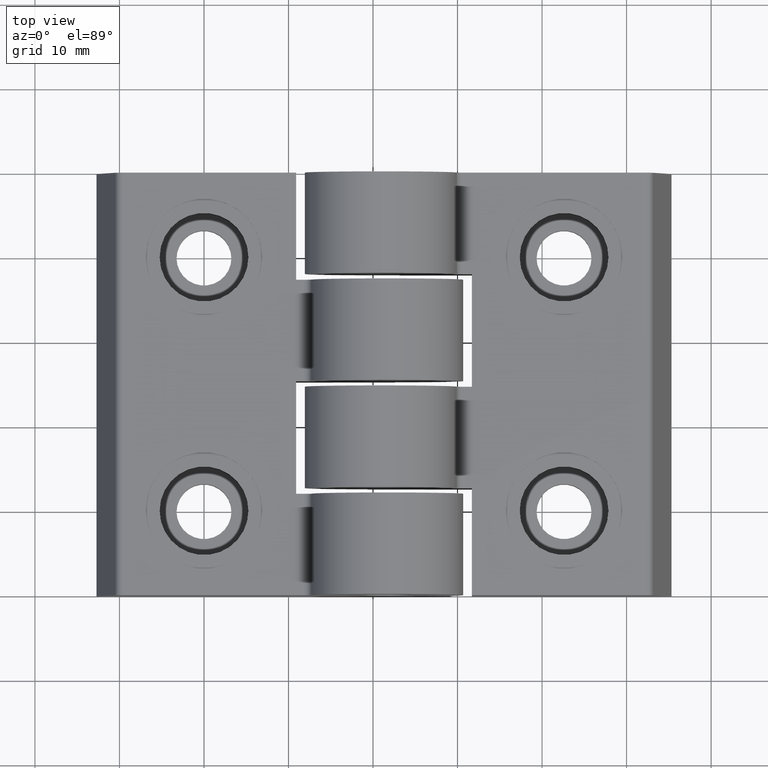
[diagram: clean part render]
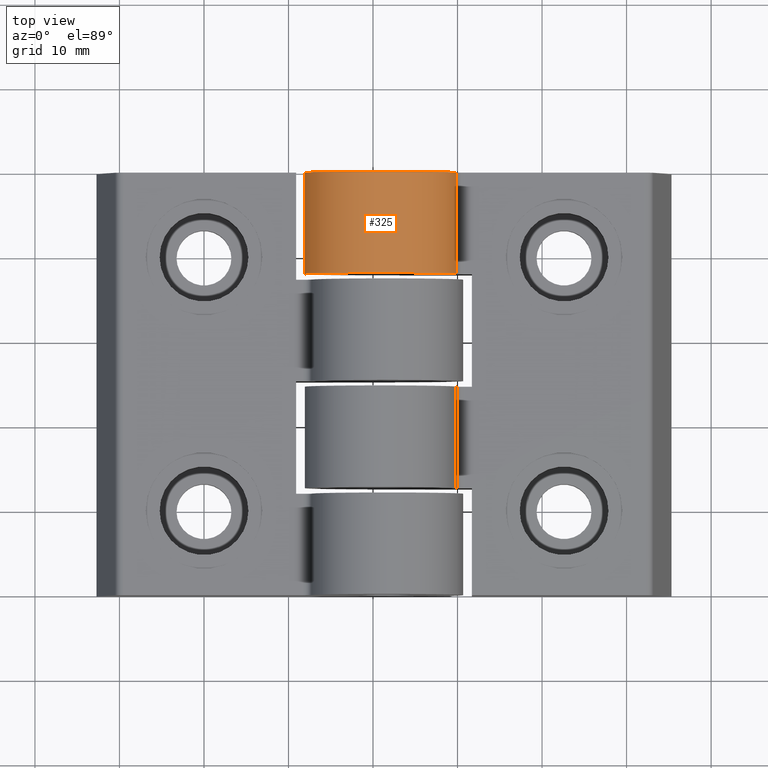
[diagram: same view with one face highlighted and labeled with its STEP entity id]
A machine part, top view. The second image highlights one B-rep face of the part: STEP entity #325.
In plain terms, the highlighted cylindrical surface (partial cylindrical patch) has radius 9 mm, axis along (0, -1, 0).
Its self-contained STEP definition (entity closure, byte-faithful):
#232=CARTESIAN_POINT('',(29.871981079764339,39.999994929838977,10.899997909476069));
#233=VERTEX_POINT('',#232);
#241=CARTESIAN_POINT('',(29.871981079764339,27.999997593887201,10.899997909476069));
#242=VERTEX_POINT('',#241);
#243=CARTESIAN_POINT('',(29.871981079764339,39.999994929838977,10.899997909476069));
#244=DIRECTION('',(0.0,-1.0,0.0));
#245=VECTOR('',#244,11.999997335951775);
#246=LINE('',#243,#245);
#247=EDGE_CURVE('',#233,#242,#246,.T.);
#293=CARTESIAN_POINT('',(20.917086790741052,39.999994929838977,10.000000666356071));
#294=DIRECTION('',(7.703720E-034,-1.0,6.123234E-017));
#295=DIRECTION('',(0.994987475757264,6.123210E-018,0.099999615430205));
#296=AXIS2_PLACEMENT_3D('',#293,#294,#295);
#297=CYLINDRICAL_SURFACE('',#296,9.000007042508656);
#298=CARTESIAN_POINT('',(20.191709027022199,39.999994929838977,1.029273055670982));
#299=VERTEX_POINT('',#298);
#300=CARTESIAN_POINT('',(20.917086790741052,39.999994929838977,10.000000666356073));
#301=DIRECTION('',(7.703720E-034,-1.0,6.123234E-017));
#302=DIRECTION('',(0.994987475757264,6.123210E-018,0.099999615430204));
#303=AXIS2_PLACEMENT_3D('',#300,#301,#302);
#304=CIRCLE('',#303,9.000007042508656);
#305=EDGE_CURVE('',#233,#299,#304,.T.);
#306=ORIENTED_EDGE('',*,*,#305,.T.);
#307=CARTESIAN_POINT('',(20.191709027022199,27.999997593887201,1.029273055670982));
#308=VERTEX_POINT('',#307);
#309=CARTESIAN_POINT('',(20.191709027022199,39.999994929838977,1.029273055670982));
#310=DIRECTION('',(0.0,-1.0,0.0));
#311=VECTOR('',#310,11.999997335951775);
#312=LINE('',#309,#311);
#313=EDGE_CURVE('',#299,#308,#312,.T.);
#314=ORIENTED_EDGE('',*,*,#313,.T.);
#315=CARTESIAN_POINT('',(20.917086790741052,27.999997593887201,10.000000666356071));
#316=DIRECTION('',(7.703720E-034,-1.0,6.123234E-017));
#317=DIRECTION('',(0.994987475757264,6.123210E-018,0.099999615430204));
#318=AXIS2_PLACEMENT_3D('',#315,#316,#317);
#319=CIRCLE('',#318,9.000007042508656);
#320=EDGE_CURVE('',#242,#308,#319,.T.);
#321=ORIENTED_EDGE('',*,*,#320,.F.);
#322=ORIENTED_EDGE('',*,*,#247,.F.);
#323=EDGE_LOOP('',(#306,#314,#321,#322));
#324=FACE_OUTER_BOUND('',#323,.T.);
#325=ADVANCED_FACE('',(#324),#297,.T.);